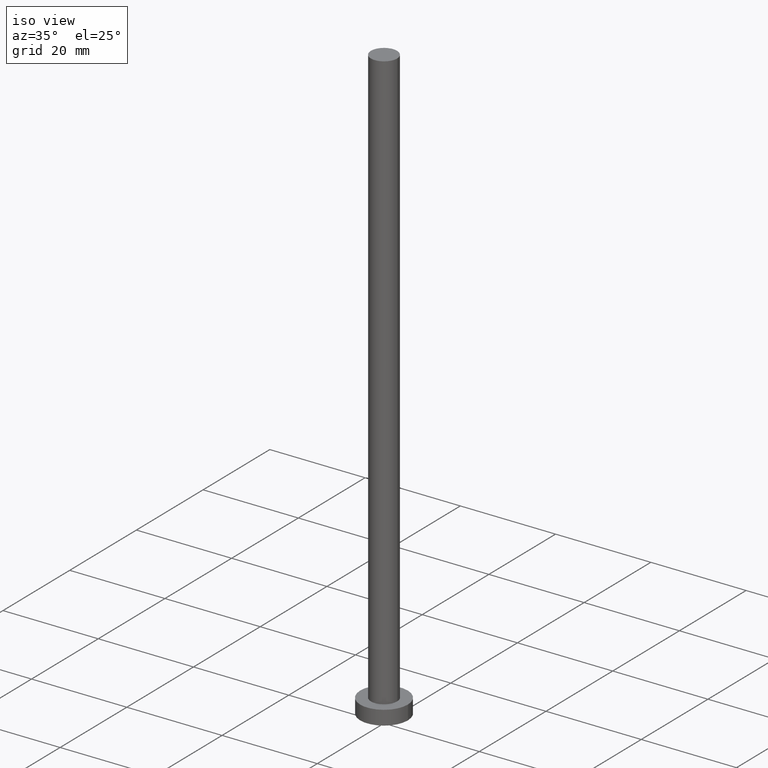
[diagram: clean part render]
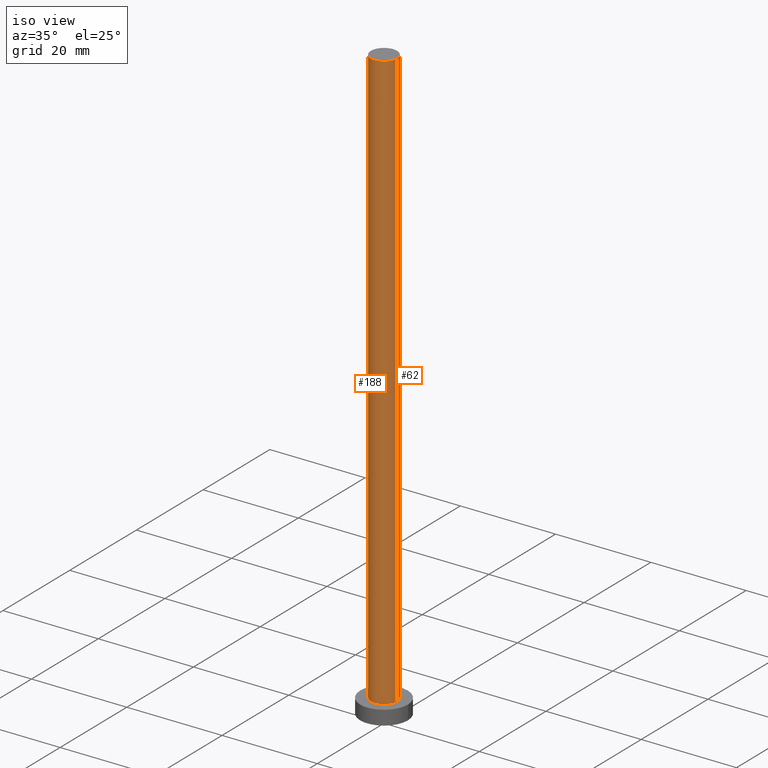
[diagram: same view with one multi-face feature highlighted, each face labeled with its STEP entity id]
A machine part, iso view. The highlighted faces form ONE feature: a constant-radius fillet chain: 2 tangent blend faces with common blend radius 2.75 mm. The faces share edges in the B-rep.
Their STEP definitions:
[1] entity #62 (Cylinder):
#3 = VERTEX_POINT ( 'NONE', #110 ) ;
#5 = VECTOR ( 'NONE', #218, 1000.000000000000000 ) ;
#6 = EDGE_CURVE ( 'NONE', #234, #249, #133, .T. ) ;
#8 = CIRCLE ( 'NONE', #222, 2.750000000000000000 ) ;
#11 = EDGE_CURVE ( 'NONE', #162, #234, #145, .T. ) ;
#15 = ORIENTED_EDGE ( 'NONE', *, *, #223, .T. ) ;
#25 = ORIENTED_EDGE ( 'NONE', *, *, #44, .T. ) ;
#30 = EDGE_LOOP ( 'NONE', ( #236, #15, #25, #247 ) ) ;
#44 = EDGE_CURVE ( 'NONE', #3, #249, #8, .T. ) ;
#53 = DIRECTION ( 'NONE',  ( 0.000000000000000000, 0.000000000000000000, 1.000000000000000000 ) ) ;
#62 = ADVANCED_FACE ( 'NONE', ( #237 ), #185, .T. ) ;
#63 = AXIS2_PLACEMENT_3D ( 'NONE', #227, #53, #94 ) ;
#76 = VECTOR ( 'NONE', #149, 1000.000000000000000 ) ;
#77 = CARTESIAN_POINT ( 'NONE',  ( 0.000000000000000000, 0.000000000000000000, 125.0000000000000000 ) ) ;
#93 = CARTESIAN_POINT ( 'NONE',  ( -2.750000000000000000, 0.000000000000000000, 125.0000000000000000 ) ) ;
#94 = DIRECTION ( 'NONE',  ( 1.000000000000000000, 0.000000000000000000, 0.000000000000000000 ) ) ;
#110 = CARTESIAN_POINT ( 'NONE',  ( 2.750000000000000000, 3.367778697655220519E-16, 3.000000000000000000 ) ) ;
#112 = LINE ( 'NONE', #182, #5 ) ;
#125 = DIRECTION ( 'NONE',  ( 1.000000000000000000, 0.000000000000000000, 0.000000000000000000 ) ) ;
#129 = DIRECTION ( 'NONE',  ( -1.000000000000000000, 0.000000000000000000, 0.000000000000000000 ) ) ;
#133 = LINE ( 'NONE', #251, #76 ) ;
#145 = CIRCLE ( 'NONE', #63, 2.750000000000000000 ) ;
#148 = CARTESIAN_POINT ( 'NONE',  ( 0.000000000000000000, 0.000000000000000000, 3.000000000000000000 ) ) ;
#149 = DIRECTION ( 'NONE',  ( -0.000000000000000000, -0.000000000000000000, -1.000000000000000000 ) ) ;
#156 = AXIS2_PLACEMENT_3D ( 'NONE', #77, #212, #129 ) ;
#162 = VERTEX_POINT ( 'NONE', #184 ) ;
#178 = CARTESIAN_POINT ( 'NONE',  ( -2.750000000000000000, 0.000000000000000000, 3.000000000000000000 ) ) ;
#182 = CARTESIAN_POINT ( 'NONE',  ( 2.750000000000000000, 3.367778697655220519E-16, 125.0000000000000000 ) ) ;
#184 = CARTESIAN_POINT ( 'NONE',  ( 2.750000000000000000, 3.367778697655220519E-16, 125.0000000000000000 ) ) ;
#185 = CYLINDRICAL_SURFACE ( 'NONE', #156, 2.750000000000000000 ) ;
#212 = DIRECTION ( 'NONE',  ( -0.000000000000000000, -0.000000000000000000, -1.000000000000000000 ) ) ;
#218 = DIRECTION ( 'NONE',  ( -0.000000000000000000, -0.000000000000000000, -1.000000000000000000 ) ) ;
#222 = AXIS2_PLACEMENT_3D ( 'NONE', #148, #224, #125 ) ;
#223 = EDGE_CURVE ( 'NONE', #162, #3, #112, .T. ) ;
#224 = DIRECTION ( 'NONE',  ( 0.000000000000000000, 0.000000000000000000, 1.000000000000000000 ) ) ;
#227 = CARTESIAN_POINT ( 'NONE',  ( 0.000000000000000000, 0.000000000000000000, 125.0000000000000000 ) ) ;
#234 = VERTEX_POINT ( 'NONE', #93 ) ;
#236 = ORIENTED_EDGE ( 'NONE', *, *, #11, .F. ) ;
#237 = FACE_OUTER_BOUND ( 'NONE', #30, .T. ) ;
#247 = ORIENTED_EDGE ( 'NONE', *, *, #6, .F. ) ;
#249 = VERTEX_POINT ( 'NONE', #178 ) ;
#251 = CARTESIAN_POINT ( 'NONE',  ( -2.750000000000000000, 0.000000000000000000, 125.0000000000000000 ) ) ;
[2] entity #188 (Cylinder):
#3 = VERTEX_POINT ( 'NONE', #110 ) ;
#5 = VECTOR ( 'NONE', #218, 1000.000000000000000 ) ;
#6 = EDGE_CURVE ( 'NONE', #234, #249, #133, .T. ) ;
#10 = AXIS2_PLACEMENT_3D ( 'NONE', #43, #134, #138 ) ;
#20 = FACE_OUTER_BOUND ( 'NONE', #26, .T. ) ;
#21 = EDGE_CURVE ( 'NONE', #249, #3, #117, .T. ) ;
#26 = EDGE_LOOP ( 'NONE', ( #47, #85, #213, #187 ) ) ;
#43 = CARTESIAN_POINT ( 'NONE',  ( 0.000000000000000000, 0.000000000000000000, 125.0000000000000000 ) ) ;
#47 = ORIENTED_EDGE ( 'NONE', *, *, #223, .F. ) ;
#76 = VECTOR ( 'NONE', #149, 1000.000000000000000 ) ;
#78 = AXIS2_PLACEMENT_3D ( 'NONE', #214, #202, #121 ) ;
#85 = ORIENTED_EDGE ( 'NONE', *, *, #207, .F. ) ;
#93 = CARTESIAN_POINT ( 'NONE',  ( -2.750000000000000000, 0.000000000000000000, 125.0000000000000000 ) ) ;
#110 = CARTESIAN_POINT ( 'NONE',  ( 2.750000000000000000, 3.367778697655220519E-16, 3.000000000000000000 ) ) ;
#112 = LINE ( 'NONE', #182, #5 ) ;
#113 = CARTESIAN_POINT ( 'NONE',  ( 0.000000000000000000, 0.000000000000000000, 125.0000000000000000 ) ) ;
#117 = CIRCLE ( 'NONE', #78, 2.750000000000000000 ) ;
#121 = DIRECTION ( 'NONE',  ( 1.000000000000000000, 0.000000000000000000, 0.000000000000000000 ) ) ;
#133 = LINE ( 'NONE', #251, #76 ) ;
#134 = DIRECTION ( 'NONE',  ( -0.000000000000000000, -0.000000000000000000, -1.000000000000000000 ) ) ;
#138 = DIRECTION ( 'NONE',  ( -1.000000000000000000, 0.000000000000000000, 0.000000000000000000 ) ) ;
#139 = CYLINDRICAL_SURFACE ( 'NONE', #10, 2.750000000000000000 ) ;
#149 = DIRECTION ( 'NONE',  ( -0.000000000000000000, -0.000000000000000000, -1.000000000000000000 ) ) ;
#162 = VERTEX_POINT ( 'NONE', #184 ) ;
#178 = CARTESIAN_POINT ( 'NONE',  ( -2.750000000000000000, 0.000000000000000000, 3.000000000000000000 ) ) ;
#182 = CARTESIAN_POINT ( 'NONE',  ( 2.750000000000000000, 3.367778697655220519E-16, 125.0000000000000000 ) ) ;
#184 = CARTESIAN_POINT ( 'NONE',  ( 2.750000000000000000, 3.367778697655220519E-16, 125.0000000000000000 ) ) ;
#187 = ORIENTED_EDGE ( 'NONE', *, *, #21, .T. ) ;
#188 = ADVANCED_FACE ( 'NONE', ( #20 ), #139, .T. ) ;
#202 = DIRECTION ( 'NONE',  ( 0.000000000000000000, 0.000000000000000000, 1.000000000000000000 ) ) ;
#205 = AXIS2_PLACEMENT_3D ( 'NONE', #113, #216, #255 ) ;
#207 = EDGE_CURVE ( 'NONE', #234, #162, #232, .T. ) ;
#213 = ORIENTED_EDGE ( 'NONE', *, *, #6, .T. ) ;
#214 = CARTESIAN_POINT ( 'NONE',  ( 0.000000000000000000, 0.000000000000000000, 3.000000000000000000 ) ) ;
#216 = DIRECTION ( 'NONE',  ( 0.000000000000000000, 0.000000000000000000, 1.000000000000000000 ) ) ;
#218 = DIRECTION ( 'NONE',  ( -0.000000000000000000, -0.000000000000000000, -1.000000000000000000 ) ) ;
#223 = EDGE_CURVE ( 'NONE', #162, #3, #112, .T. ) ;
#232 = CIRCLE ( 'NONE', #205, 2.750000000000000000 ) ;
#234 = VERTEX_POINT ( 'NONE', #93 ) ;
#249 = VERTEX_POINT ( 'NONE', #178 ) ;
#251 = CARTESIAN_POINT ( 'NONE',  ( -2.750000000000000000, 0.000000000000000000, 125.0000000000000000 ) ) ;
#255 = DIRECTION ( 'NONE',  ( 1.000000000000000000, 0.000000000000000000, 0.000000000000000000 ) ) ;